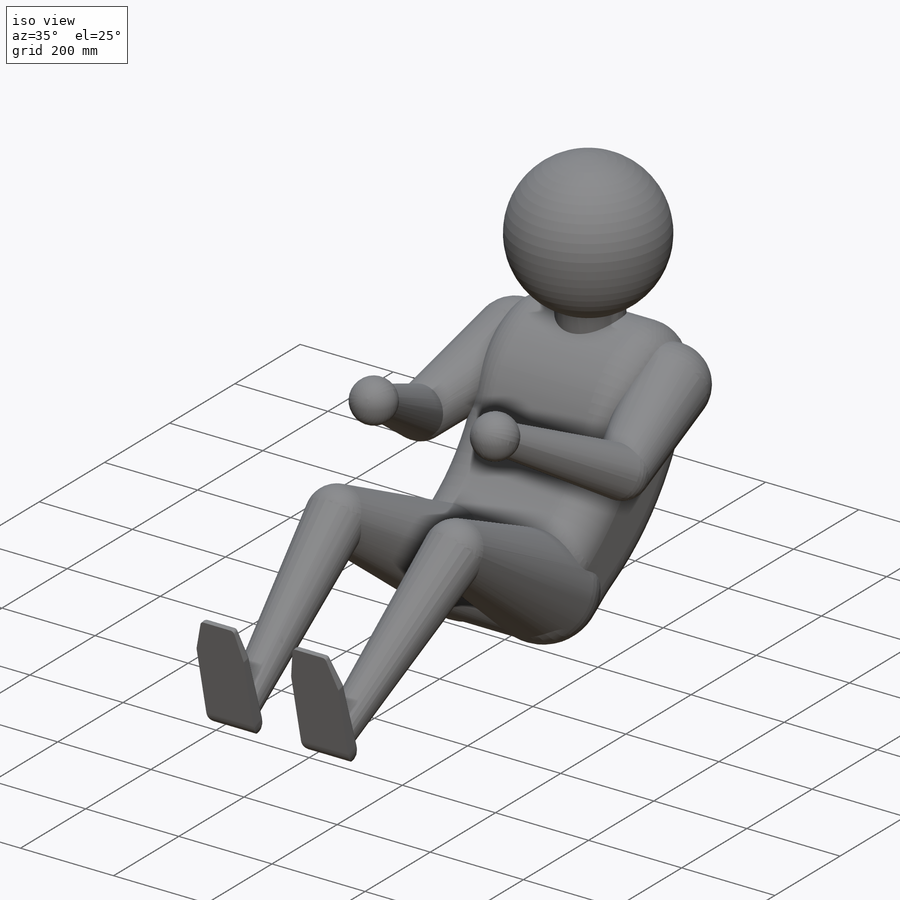
[diagram: iso view]
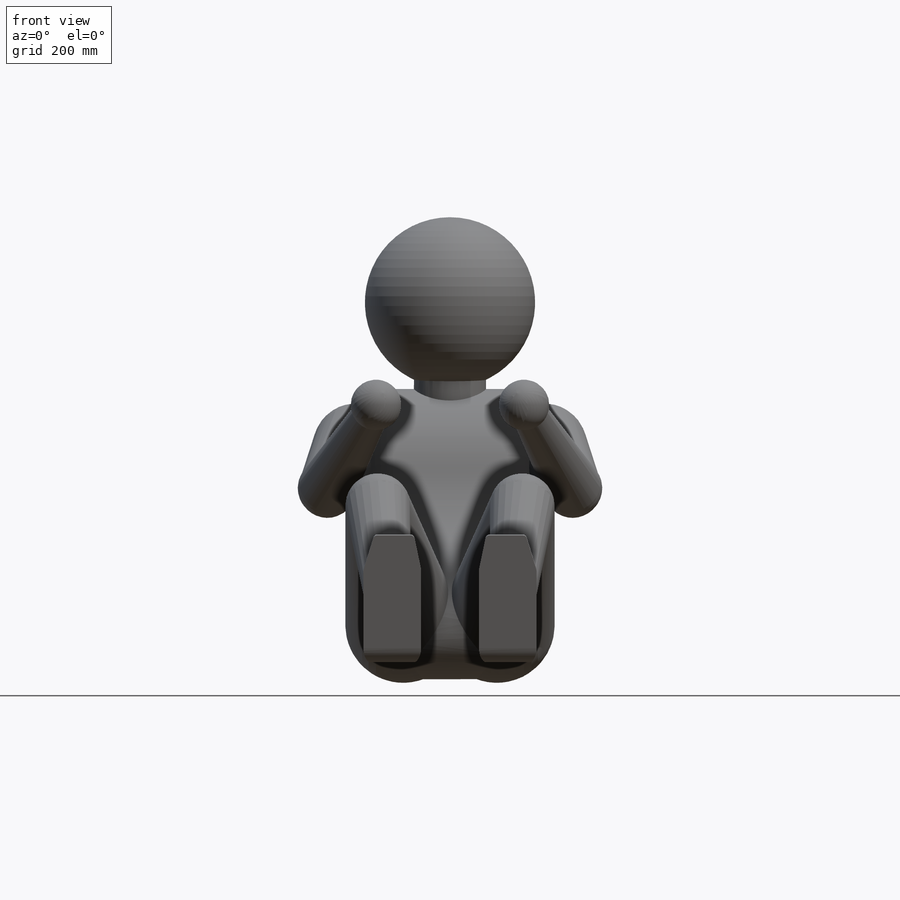
[diagram: front view]
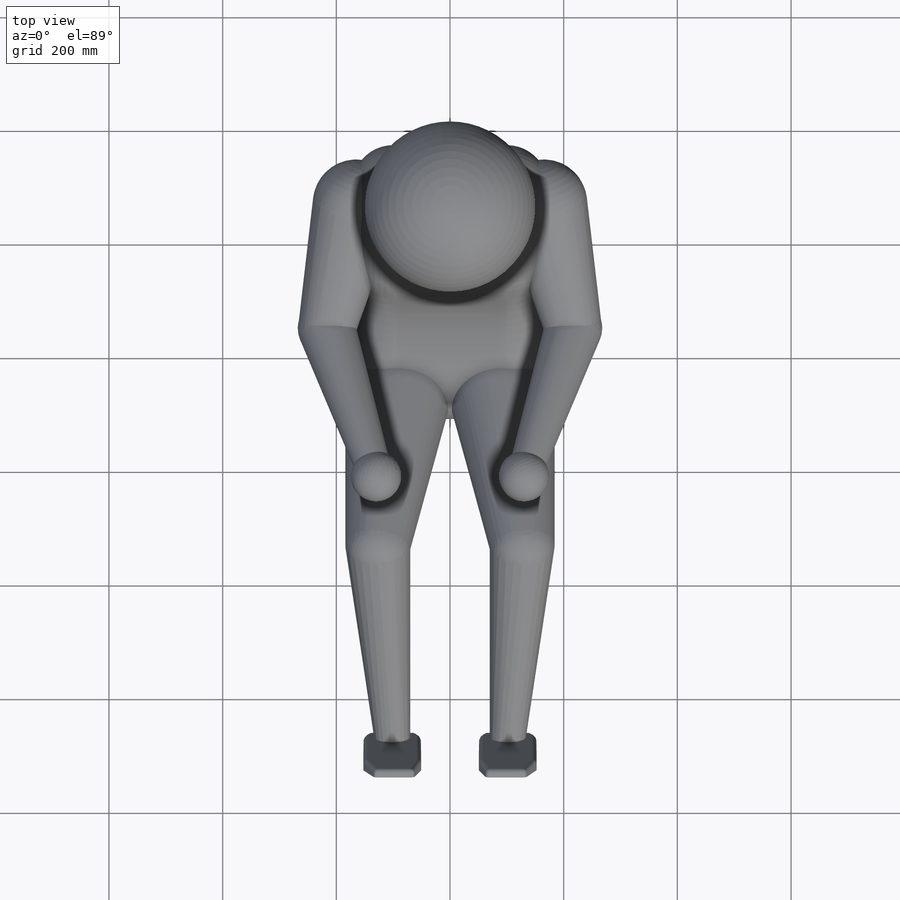
[diagram: top view]
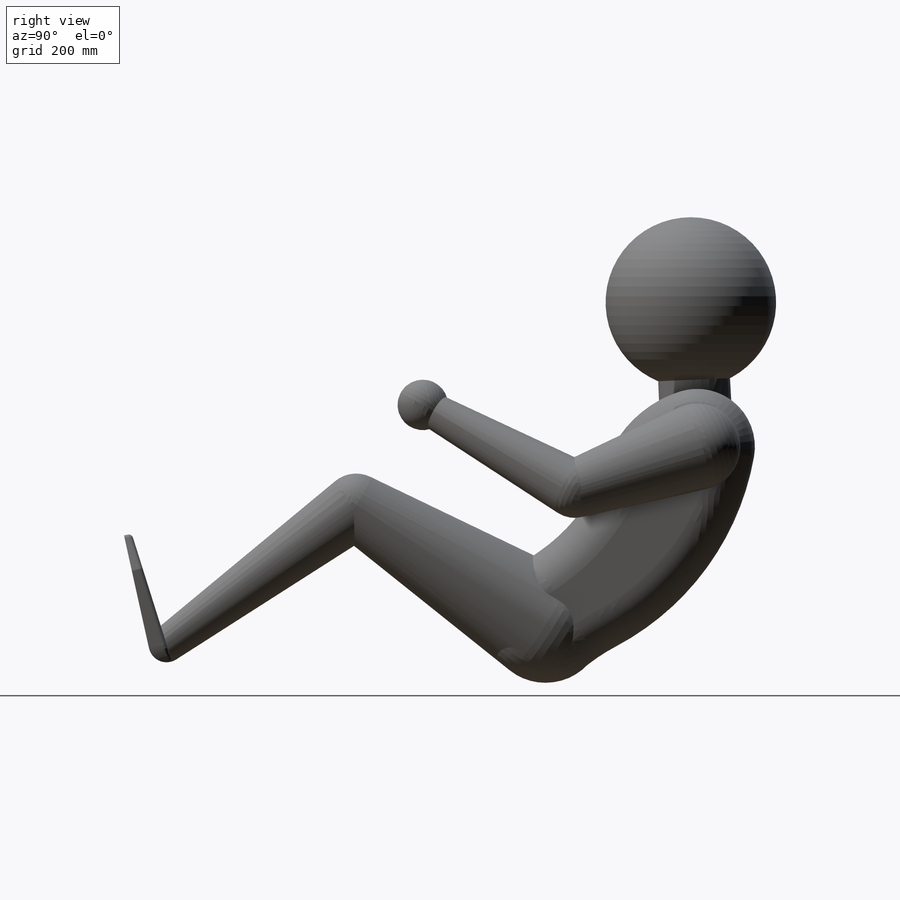
[diagram: right view]
SOLIDWORKS PART (.sldprt)
format: sldprt  version: not decoded by parser v0  size: 6,881,280 bytes
history: native  units: mm
features: sketch x11, plane x7, revolve x6, extrude x2, fillet x2, material x1, cut_extrude x1, mirror x1 (+10 scaffold rows collapsed)
feature tree (41):
  scaffold x10  (default folders/planes/origin — collapsed)
  material  "Percy"
  plane  "Mid Plane"
  plane  "Plane6"  Offset=101.6mm
  sketch  "Sketch1"  dims[c1.D8=300.0mm c1.D9=203.2mm c1.D10=241.3mm c1.D11=101.6mm c1.D12=114.3mm c1.D13=76.2mm c1.D14=50.8mm c1.D25=300.0mm c1.D1=254.0mm c1.D2=508.0mm c1.D3=431.8mm c1.D4=533.4mm c1.D5=254.0mm c1.D6=311.15mm c1.D7=317.5mm c2.D4=355.6mm c2.D15=177.8mm c2.D16=177.8mm c3.D16=160.0deg c3.D17=25.4mm c3.D18=165.1mm c3.D19=88.9mm c3.D20=228.6mm c4.D20=45.0deg c4.D21=469.9mm c4.D22=508.0mm c4.D23=596.9mm c4.D24=~296.961953mm c5.D24=~110.121072deg c5.D18=~211.352917mm c6.D18=25.0deg c6.D16=~270.194733mm c7.D16=70.0deg c7.D4=~348.461324mm c8.D4=100.0deg c9.D4=~133.77595mm c10.D4=110.0deg c10.D17=~361.183418mm c10.D19=~361.183418mm c11.D19=~167.146573deg c11.D20=279.4mm c12.D20=12.0deg c12.D21=~155.448165mm c13.D21=~182.269678deg c14.D21=215.9mm c15.D21=5.0deg c15.D22=228.6mm c16.D22=125.0deg c16.D23=228.6mm c17.D23=17.5deg c17.D24=~535.989551mm c17.D15=558.8mm c17.D17=~384.053675mm c17.D18=~980.404437mm c18.D18=~134.562242deg c19.D18=~1054.447875mm c20.D18=130.0deg c20.D24=~384.053675mm c20.D21=431.8mm c20.D22=1016.0mm c21.D24=~518.451348mm c21.D18=~279.605776mm c22.D18=2.5deg c22.D21=~304.393256mm c22.D22=~217.174944mm c23.D22=~120.780956deg c23.D15=895.35mm c23.D21=~425.043256mm c23.D7=508.0mm c24.D22=863.6mm c24.D4=349.25mm c24.D21=~420.245865mm c24.D3=438.15mm c25.D21=520.7mm c25.D23=495.3mm c25.D24=~231.71002mm c26.D24=17.5deg c26.D20=584.2mm c26.D17=~1001.475892mm c27.D17=50.0deg c27.D19=95.25mm c27.D3=520.7mm c27.D10=381.0mm c27.D15=895.35mm c27.D20=241.3mm c27.D25=285.75mm c28.D10=368.3mm]
  sketch  "Sketch3"  dims[D1=150.0mm]
  revolve  "Helmet"  Angle=360deg
  sketch  "Sketch4"  dims[c1.D1=254.0mm c1.D2=127.0mm c1.D4=101.6mm c2.D1=~199.04801mm c2.D3=533.4mm c2.D6=304.8mm c2.D7=431.8mm c2.D9=635.0mm c3.D3=114.3mm c3.D4=114.3mm c3.D7=482.6mm c3.D8=355.6mm c3.D9=254.0mm c3.D10=215.9mm c3.D11=939.8mm c4.D3=~275.883382mm c5.D3=~3.031758deg c6.D3=~186.829753mm c6.D1=~299.214618mm c6.D2=~175.468429mm c7.D2=85.0deg c7.D4=~105.273769mm c8.D4=115.0deg c8.D5=~112.153378mm c9.D5=25.0deg c10.D5=~122.272039mm c11.D5=20.0deg c11.D8=120.65mm c12.D8=140.0deg c12.D2=~98.124211mm c13.D2=22.5deg c13.D4=254.0mm c14.D4=95.0deg c14.D5=~69.602639mm c15.D5=100.0deg c15.D6=~79.407097mm c16.D6=120.0deg c16.D12=~91.38721mm c17.D12=~79.703207deg c18.D12=~386.888768mm c19.D12=87.0deg c19.D2=~96.897642mm c20.D2=17.5deg c20.D4=~279.605776mm c21.D4=100.0deg]
  extrude  "Main body"  Depth=184.15mm
  fillet  "Fillet2"  Radius=71.12mm
  sketch  "Sketch5"  dims[c1.D1=57.15mm c1.D2=57.15mm c2.D1=63.5mm]
  revolve  "Neck"  Angle=360deg
  plane  "Arm Plane"
  plane  "Forearm Plane"
  plane  "Thigh Plane"
  plane  "Foot Plane"
  sketch  "Sketch6"  dims[c1.D3=127.0mm c1.D4=215.9mm c1.D1=127.0mm c1.D2=82.55mm c2.D3=~14.573626mm]
  revolve  "Thigh"  Angle=360deg
  sketch  "Sketch7"  dims[D1=127.0mm D2=76.2mm D3=101.6mm]
  revolve  "Leg"  Angle=360deg
  sketch  "Sketch8"  dims[c1.D2=76.2mm c1.D1=25.4mm c1.D3=63.5mm c1.D4=~228.24695mm c2.D1=~149.480362mm c2.D2=~144.18574mm c3.D2=5.0deg c3.D1=203.2mm]
  extrude  "Foot"  Depth=101.6mm
  sketch  "Sketch9"  dims[c1.D1=101.6mm c1.D4=50.8mm c1.D2=63.5mm c1.D3=~282.512223mm c2.D4=~282.512223mm c2.D3=~69.81847mm c3.D4=19.05mm]
  cut_extrude  "Cut-Extrude1"  Depth=50.8mm
  sketch  "Sketch10"  dims[c1.D2=177.8mm c1.D3=114.3mm c1.D5=88.9mm c1.D6=57.15mm c1.D1=190.5mm c1.D4=215.9mm c1.D7=177.8mm c1.D8=215.9mm c1.D9=57.15mm c2.D8=215.9mm]
  revolve  "Arm"  Angle=360deg
  sketch  "Sketch11"  dims[D1=114.3mm D2=101.6mm D3=130.175mm D4=38.1mm]
  revolve  "Forearm"  Angle=360deg
  fillet  "Fillet5"  Radius=7.62mm
  mirror  "Mirror3"
  plane  "Hand Plane"
  sketch  "Sketch12"
decode coverage: 21 of 23 modeling features carry decoded parameters
note: ~ marks probable driven/reference dimensions
note: suppression state not decoded; provenance and decode notes live in map.json
